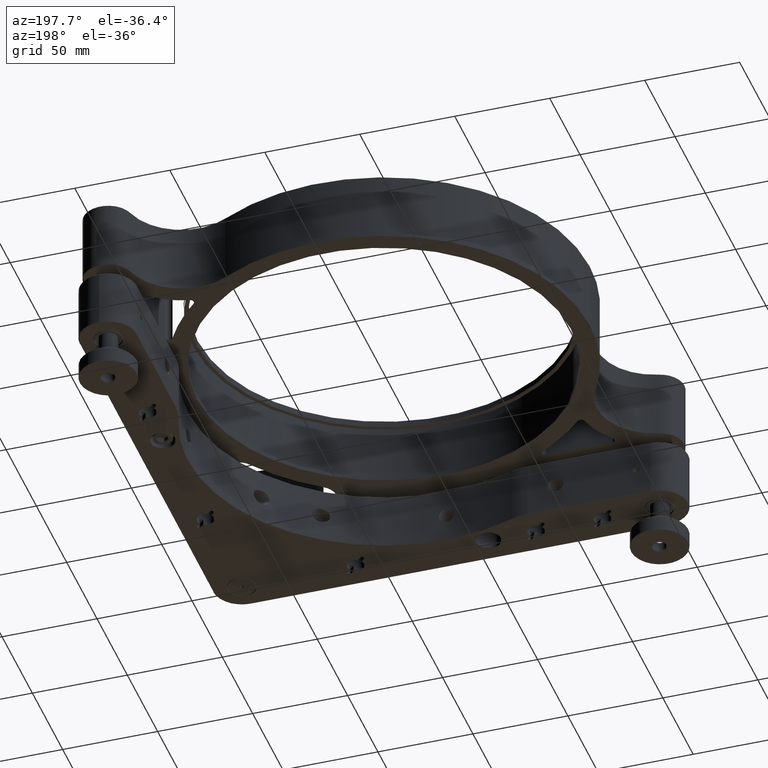
[diagram: clean part render]
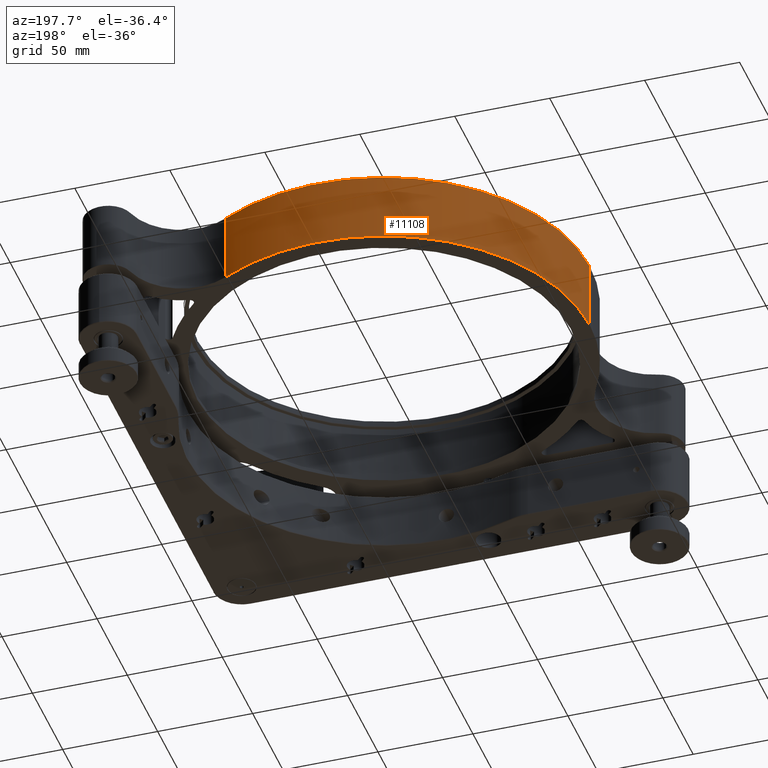
[diagram: same view with one face highlighted and labeled with its STEP entity id]
A machine part, auxiliary view. The second image highlights one B-rep face of the part: STEP entity #11108.
In plain terms, the highlighted cylindrical surface (partial cylindrical patch) has radius 108.35 mm, axis along (-0, -0, -1).
Its self-contained STEP definition (entity closure, byte-faithful):
#154 = VERTEX_POINT ( 'NONE', #4779 ) ;
#205 = LINE ( 'NONE', #10576, #11928 ) ;
#293 = DIRECTION ( 'NONE',  ( -5.029013959943429289E-30, -1.224646799147301438E-16, -1.000000000000000000 ) ) ;
#558 = ORIENTED_EDGE ( 'NONE', *, *, #9309, .T. ) ;
#833 = CIRCLE ( 'NONE', #11869, 108.3499999999991843 ) ;
#1082 = DIRECTION ( 'NONE',  ( -5.029013959943429289E-30, -1.224646799147301438E-16, -1.000000000000000000 ) ) ;
#1736 = CARTESIAN_POINT ( 'NONE',  ( -71.54070955278882593, 219.2434441480173462, 58.47056274847700763 ) ) ;
#1797 = EDGE_CURVE ( 'NONE', #154, #8776, #205, .T. ) ;
#2185 = LINE ( 'NONE', #4144, #11370 ) ;
#2831 = CYLINDRICAL_SURFACE ( 'NONE', #8737, 108.3499999999991843 ) ;
#2934 = CIRCLE ( 'NONE', #11953, 108.3499999999991843 ) ;
#3275 = DIRECTION ( 'NONE',  ( 5.029013959943429289E-30, 1.224646799147301438E-16, 1.000000000000000000 ) ) ;
#4137 = EDGE_CURVE ( 'NONE', #9251, #8776, #833, .T. ) ;
#4144 = CARTESIAN_POINT ( 'NONE',  ( -71.54070955278882593, 219.2434441480173462, 58.47156274847700530 ) ) ;
#4779 = CARTESIAN_POINT ( 'NONE',  ( -233.3499999999987722, 124.9999999999990905, 58.47056274847702184 ) ) ;
#4850 = DIRECTION ( 'NONE',  ( -5.029013959943429289E-30, -1.224646799147301438E-16, -1.000000000000000000 ) ) ;
#5270 = VERTEX_POINT ( 'NONE', #1736 ) ;
#5313 = DIRECTION ( 'NONE',  ( 1.000000000000000000, 0.000000000000000000, 0.000000000000000000 ) ) ;
#5451 = CARTESIAN_POINT ( 'NONE',  ( -124.9999999999987352, 124.9999999999991473, 21.97056274847702895 ) ) ;
#5821 = ORIENTED_EDGE ( 'NONE', *, *, #4137, .T. ) ;
#6313 = CARTESIAN_POINT ( 'NONE',  ( -124.9999999999987352, 124.9999999999990905, 58.47056274847702184 ) ) ;
#6678 = CARTESIAN_POINT ( 'NONE',  ( -124.9999999999987352, 124.9999999999990905, 58.47156274847701951 ) ) ;
#6969 = EDGE_CURVE ( 'NONE', #5270, #154, #2934, .T. ) ;
#7533 = ORIENTED_EDGE ( 'NONE', *, *, #1797, .F. ) ;
#8047 = EDGE_LOOP ( 'NONE', ( #7533, #8148, #558, #5821 ) ) ;
#8148 = ORIENTED_EDGE ( 'NONE', *, *, #6969, .F. ) ;
#8737 = AXIS2_PLACEMENT_3D ( 'NONE', #6678, #4850, #8748 ) ;
#8748 = DIRECTION ( 'NONE',  ( -1.000000000000000000, 0.000000000000000000, 0.000000000000000000 ) ) ;
#8776 = VERTEX_POINT ( 'NONE', #8961 ) ;
#8847 = CARTESIAN_POINT ( 'NONE',  ( -71.54070955278882593, 219.2434441480173462, 21.97056274847713553 ) ) ;
#8961 = CARTESIAN_POINT ( 'NONE',  ( -233.3499999999987722, 124.9999999999990905, 21.97056274847702895 ) ) ;
#9251 = VERTEX_POINT ( 'NONE', #8847 ) ;
#9309 = EDGE_CURVE ( 'NONE', #5270, #9251, #2185, .T. ) ;
#10270 = DIRECTION ( 'NONE',  ( -1.000000000000000000, 0.000000000000000000, 0.000000000000000000 ) ) ;
#10576 = CARTESIAN_POINT ( 'NONE',  ( -233.3499999999979195, 124.9999999999990905, 58.47156274847701951 ) ) ;
#11108 = ADVANCED_FACE ( 'NONE', ( #11359 ), #2831, .T. ) ;
#11137 = DIRECTION ( 'NONE',  ( 5.029013959943429289E-30, 1.224646799147301438E-16, 1.000000000000000000 ) ) ;
#11359 = FACE_OUTER_BOUND ( 'NONE', #8047, .T. ) ;
#11370 = VECTOR ( 'NONE', #293, 1000.000000000000000 ) ;
#11869 = AXIS2_PLACEMENT_3D ( 'NONE', #5451, #11137, #10270 ) ;
#11928 = VECTOR ( 'NONE', #1082, 1000.000000000000000 ) ;
#11953 = AXIS2_PLACEMENT_3D ( 'NONE', #6313, #3275, #5313 ) ;